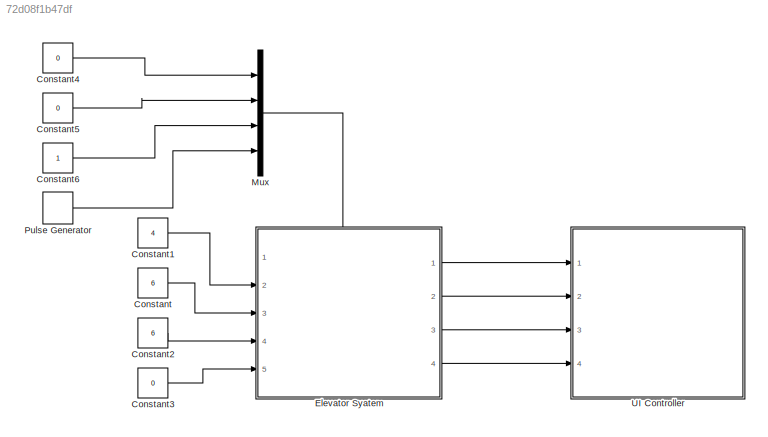
MODEL slx_72d08f1b47df
KIND model
CONFIG AbsTol = auto
CONFIG EnableMultiTasking = off
CONFIG FixedStep = auto
CONFIG MaxStep = auto
CONFIG MinStep = auto
CONFIG RelTol = 1e-3
CONFIG SampleTimeConstraint = Unconstrained
CONFIG Solver = VariableStepAuto
CONFIG SolverName = VariableStepAuto
CONFIG StartTime = 0.0
CONFIG StopTime = 10.0
BLOCK [Constant] Constant
  Value = 6
BLOCK [Constant] Constant1
  Value = 4
BLOCK [Constant] Constant2
  Value = 6
BLOCK [Constant] Constant3
  Value = 0
BLOCK [Constant] Constant4
  Value = 0
BLOCK [Constant] Constant5
  Value = 0
BLOCK [Constant] Constant6
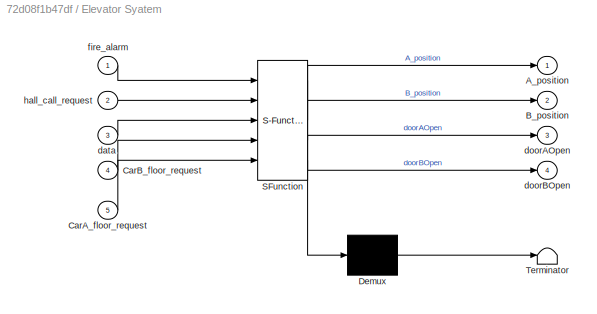
BLOCK [SubSystem] Elevator Syatem
  ErrorFcn = Stateflow.Translate.translate
  PermitHierarchicalResolution = ExplicitOnly
  PortSchema = {"entries":[{"content":{"sides":[{"content":{"connectorIds":["In2","In3","In4","In5"]},"type":"ConnectorPlacement.EquallySpacedRectSide","uuid":"b1e35ebb-546f-457f-9849-592c5c7d77f9"},{"content":{"connectorIds":["Out1","Out2","Out3","Out4"],"side":"RIGHT"},"type":"ConnectorPlacement.EquallySpacedRectSide","uuid":"8b3bb18a-818d-452f-838d-9e128c74f0e6"},{"content":{"connectorIds":["In1"],"side":"TOP...<+286ch>
  Ports = [5, 4]
  RequestExecContextInheritance = off
  SFBlockType = Chart
  TreatAsAtomicUnit = on
BLOCK [Demux] Elevator Syatem/ Demux 
  Outputs = 1
  Ports = [1, 1]
BLOCK [S-Function] Elevator Syatem/ SFunction 
  EnableBusSupport = off
  FunctionName = sf_sfun
  PortCounts = [5 5]
  Ports = [5, 5]
  SFcnIsStateOwnerBlock = off
  SFunctionDeploymentMode = off
  Tag = Stateflow S-Function 3
BLOCK [Terminator] Elevator Syatem/ Terminator 
BLOCK [Outport] Elevator Syatem/A_position
BLOCK [Outport] Elevator Syatem/B_position
  Port = 2
BLOCK [Inport] Elevator Syatem/CarA_floor_request
  Port = 5
BLOCK [Inport] Elevator Syatem/CarB_floor_request
  Port = 4
BLOCK [Inport] Elevator Syatem/data
  Port = 3
BLOCK [Outport] Elevator Syatem/doorAOpen
  Port = 3
BLOCK [Outport] Elevator Syatem/doorBOpen
  Port = 4
BLOCK [Inport] Elevator Syatem/fire_alarm
BLOCK [Inport] Elevator Syatem/hall_call_request
  Port = 2
BLOCK [Mux] Mux
  DisplayOption = bar
  Ports = [4, 1]
BLOCK [DiscretePulseGenerator] Pulse Generator
  Period = 10
  Ports = [0, 1]
  PulseType = Time based
  PulseWidth = 5
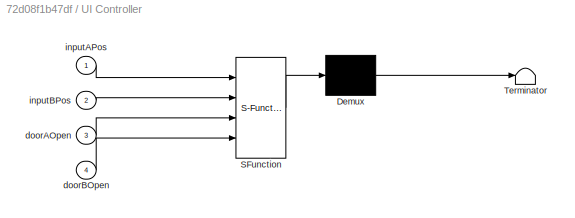
BLOCK [SubSystem] UI Controller
  ErrorFcn = Stateflow.Translate.translate
  PermitHierarchicalResolution = ExplicitOnly
  Ports = [4]
  RequestExecContextInheritance = off
  SFBlockType = Chart
  TreatAsAtomicUnit = on
BLOCK [Demux] UI Controller/ Demux 
  Outputs = 1
  Ports = [1, 1]
BLOCK [S-Function] UI Controller/ SFunction 
  EnableBusSupport = off
  FunctionName = sf_sfun
  PortCounts = [4 1]
  Ports = [4, 1]
  SFcnIsStateOwnerBlock = off
  SFunctionDeploymentMode = off
  Tag = Stateflow S-Function 1
BLOCK [Terminator] UI Controller/ Terminator 
BLOCK [Inport] UI Controller/doorAOpen
  Port = 3
BLOCK [Inport] UI Controller/doorBOpen
  Port = 4
BLOCK [Inport] UI Controller/inputAPos
BLOCK [Inport] UI Controller/inputBPos
  Port = 2
LINE Constant1:1 -> Elevator Syatem:2
LINE Constant2:1 -> Elevator Syatem:4
LINE Constant3:1 -> Elevator Syatem:5
LINE Constant4:1 -> Mux:1
LINE Constant5:1 -> Mux:2
LINE Constant6:1 -> Mux:3
LINE Constant:1 -> Elevator Syatem:3
LINE Elevator Syatem:1 -> UI Controller:1
LINE Elevator Syatem:2 -> UI Controller:2
LINE Elevator Syatem:3 -> UI Controller:3
LINE Elevator Syatem:4 -> UI Controller:4
LINE Mux:1 -> Elevator Syatem:1
LINE Pulse Generator:1 -> Mux:4
CHART UI Controller states=0 transitions=0
CHART Elevator Syatem states=5 transitions=10
  STATE_LABEL 'Elevator\n'
  STATE_LABEL 'PickUpDropOff\nen:Main_deregister(cur_floor);\nderegister(cut_floor);\ndirection=MOVE_IDLE;\ndoorOpen=1;\ndu:Main_deregister(cur_floor);\nderegister(cur_floor);\nex:doorOpen=0;'
  STATE_LABEL 'Stopped'
  STATE_LABEL '[fire_alarm]{status=EMERG;\nresetTheElevatorCar();}'
  STATE_LABEL 'Idle\nen:status=IDLE;\nex:status=BUSY;'
  STATE_LABEL 'MoveToTask\ndu: move_to(task_queue[0]);'
  STATE_LABEL 'CAR_CALL{register(floor_request);}'
  STATE_LABEL '{doorOpen=0;}'
  STATE_LABEL 'after(TIME_OUT,CLOCK)'
  STATE_LABEL '[task_queue[0]]'
  STATE_LABEL '[task_queue[0]]'
  STATE_LABEL '[should_stop()]'
  STATE_LABEL 'PickUpDropOff\nen:Main_deregister(cur_floor);\nderegister(cut_floor);\ndirection=MOVE_IDLE;\ndoorOpen=1;\ndu:Main_deregister(cur_floor);\nderegister(cur_floor);\nex:doorOpen=0;'
  STATE_LABEL 'Stopped'
  STATE_LABEL '[fire_alarm]{status=EMERG;\nresetTheElevatorCar();}'
  STATE_LABEL 'Stopped'
  STATE_LABEL 'Idle\nen:status=IDLE;\nex:status=BUSY;'
  STATE_LABEL 'MoveToTask\ndu: move_to(task_queue[0]);'
CHART  states=0 transitions=0
CHART  states=0 transitions=0
